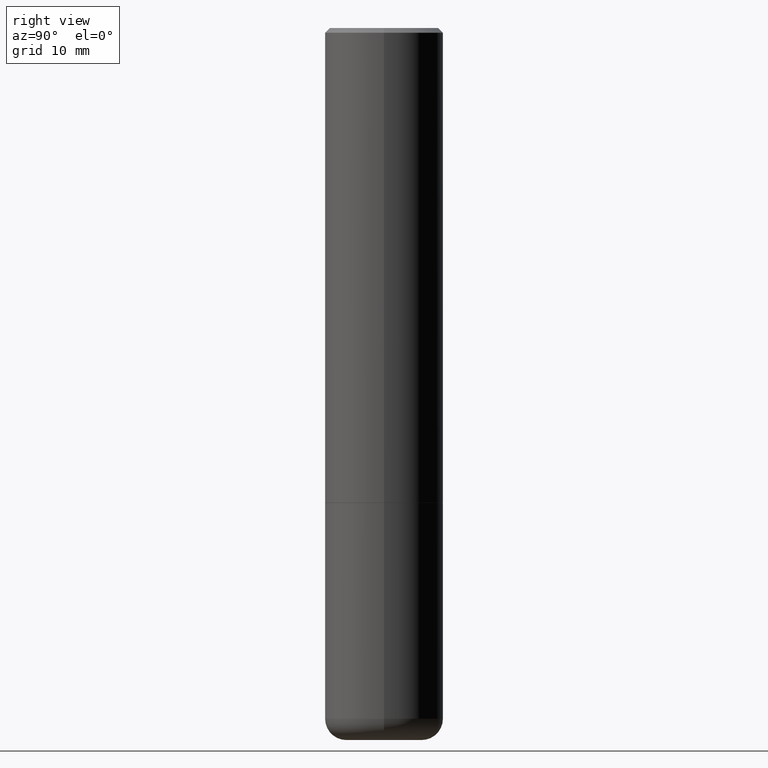
[diagram: clean part render]
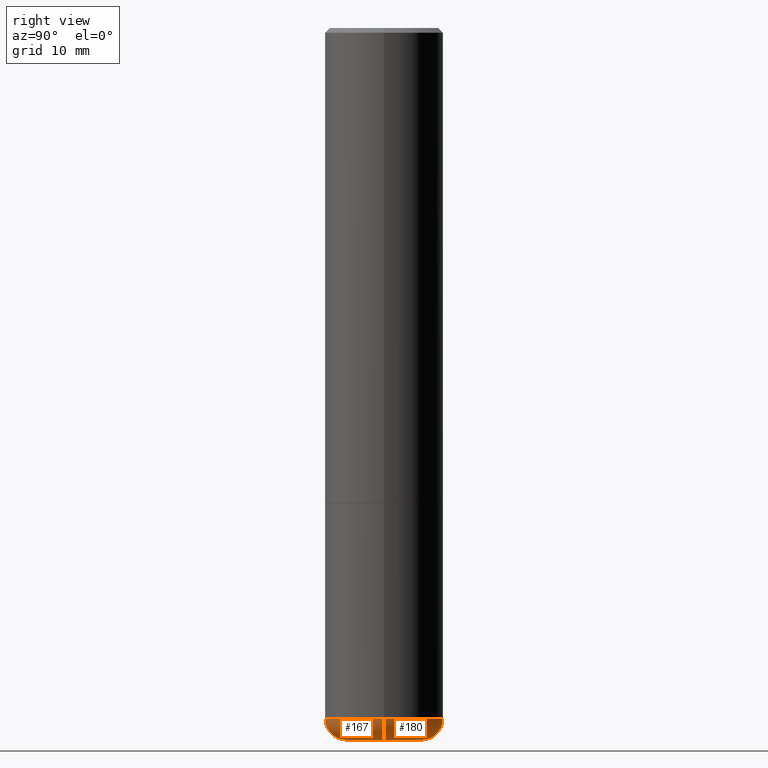
[diagram: same view with one multi-face feature highlighted, each face labeled with its STEP entity id]
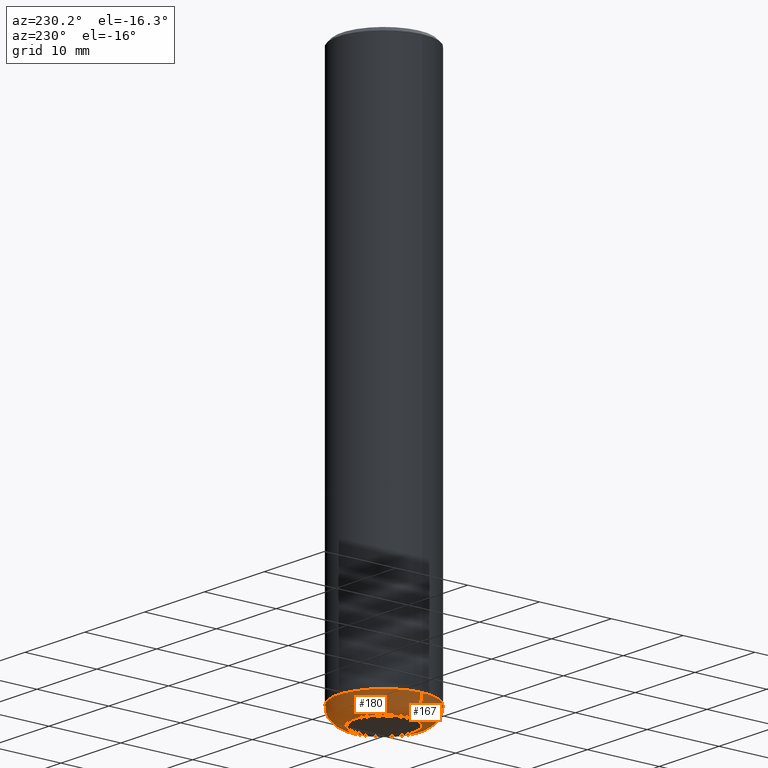
[diagram: same view with one multi-face feature highlighted, each face labeled with its STEP entity id]
A machine part, right view. The highlighted faces form ONE feature: a constant-radius fillet chain: 2 tangent blend faces with common blend radius 2.286 mm. The faces share edges in the B-rep.
A second angle (auxiliary view) of the same feature is appended — it is thin or edge-on in the first view.
Their STEP definitions:
[1] entity #167 (Torus):
#7 = AXIS2_PLACEMENT_3D ( 'NONE', #320, #169, #9 ) ;
#9 = DIRECTION ( 'NONE',  ( 1.000000000000000000, -6.982962677686271444E-15, 0.000000000000000000 ) ) ;
#22 = DIRECTION ( 'NONE',  ( 1.000000000000000000, -6.982962677686265133E-15, 4.883557194083112340E-29 ) ) ;
#28 = CIRCLE ( 'NONE', #296, 0.08999999999999964972 ) ;
#35 = DIRECTION ( 'NONE',  ( -6.982962677686266711E-15, -1.000000000000000000, 3.491481338843145583E-15 ) ) ;
#38 = CARTESIAN_POINT ( 'NONE',  ( 0.1600000000000000033, -1.127748472446335797E-14, -2.910000000000000586 ) ) ;
#44 = CARTESIAN_POINT ( 'NONE',  ( 0.2499999999999998335, -1.190595136545512292E-14, -2.910000000000000586 ) ) ;
#46 = AXIS2_PLACEMENT_3D ( 'NONE', #379, #242, #273 ) ;
#47 = AXIS2_PLACEMENT_3D ( 'NONE', #38, #35, #176 ) ;
#55 = DIRECTION ( 'NONE',  ( -2.445468806185136597E-29, 3.491481338843145583E-15, 1.000000000000000000 ) ) ;
#65 = DIRECTION ( 'NONE',  ( -1.000000000000000000, 7.105427357600996337E-15, 0.000000000000000000 ) ) ;
#72 = CIRCLE ( 'NONE', #46, 0.2500000000000000000 ) ;
#82 = ORIENTED_EDGE ( 'NONE', *, *, #238, .T. ) ;
#86 = EDGE_CURVE ( 'NONE', #267, #368, #72, .T. ) ;
#118 = CIRCLE ( 'NONE', #7, 0.1600000000000000033 ) ;
#145 = ORIENTED_EDGE ( 'NONE', *, *, #86, .F. ) ;
#149 = AXIS2_PLACEMENT_3D ( 'NONE', #276, #55, #22 ) ;
#167 = ADVANCED_FACE ( 'NONE', ( #221 ), #344, .T. ) ;
#169 = DIRECTION ( 'NONE',  ( -2.445468806185136597E-29, 3.491481338843145583E-15, 1.000000000000000000 ) ) ;
#176 = DIRECTION ( 'NONE',  ( 1.000000000000000000, -6.982962677686273810E-15, 0.000000000000000000 ) ) ;
#201 = CARTESIAN_POINT ( 'NONE',  ( 0.1600000000000000033, -1.159171804495923808E-14, -2.999999999999999556 ) ) ;
#210 = VERTEX_POINT ( 'NONE', #285 ) ;
#221 = FACE_OUTER_BOUND ( 'NONE', #358, .T. ) ;
#225 = VERTEX_POINT ( 'NONE', #201 ) ;
#228 = CIRCLE ( 'NONE', #47, 0.08999999999999964972 ) ;
#238 = EDGE_CURVE ( 'NONE', #225, #368, #228, .T. ) ;
#242 = DIRECTION ( 'NONE',  ( -2.445468806185136597E-29, 3.491481338843145583E-15, 1.000000000000000000 ) ) ;
#243 = EDGE_CURVE ( 'NONE', #210, #267, #28, .T. ) ;
#252 = DIRECTION ( 'NONE',  ( 7.105427357601001859E-15, 1.000000000000000000, -3.491481338843145583E-15 ) ) ;
#260 = ORIENTED_EDGE ( 'NONE', *, *, #243, .F. ) ;
#267 = VERTEX_POINT ( 'NONE', #386 ) ;
#273 = DIRECTION ( 'NONE',  ( 1.000000000000000000, -6.982962677686270655E-15, 0.000000000000000000 ) ) ;
#276 = CARTESIAN_POINT ( 'NONE',  ( 7.116314225998749245E-29, -1.016021069603355467E-14, -2.910000000000000586 ) ) ;
#285 = CARTESIAN_POINT ( 'NONE',  ( -0.1600000000000000033, -8.860714747973291991E-15, -2.999999999999999556 ) ) ;
#288 = EDGE_CURVE ( 'NONE', #210, #225, #118, .T. ) ;
#296 = AXIS2_PLACEMENT_3D ( 'NONE', #392, #252, #65 ) ;
#320 = CARTESIAN_POINT ( 'NONE',  ( 7.336406418555408669E-29, -1.047444401652943478E-14, -2.999999999999999556 ) ) ;
#344 = TOROIDAL_SURFACE ( 'NONE', #149, 0.1600000000000000033, 0.08999999999999964972 ) ;
#358 = EDGE_LOOP ( 'NONE', ( #260, #372, #82, #145 ) ) ;
#368 = VERTEX_POINT ( 'NONE', #44 ) ;
#372 = ORIENTED_EDGE ( 'NONE', *, *, #288, .T. ) ;
#379 = CARTESIAN_POINT ( 'NONE',  ( 7.116314225998749245E-29, -1.016021069603355467E-14, -2.910000000000000586 ) ) ;
#386 = CARTESIAN_POINT ( 'NONE',  ( -0.2499999999999998335, -8.383853856633305780E-15, -2.910000000000000586 ) ) ;
#392 = CARTESIAN_POINT ( 'NONE',  ( -0.1600000000000000033, -9.023342318817394938E-15, -2.910000000000000586 ) ) ;
[2] entity #180 (Torus):
#17 = ORIENTED_EDGE ( 'NONE', *, *, #243, .T. ) ;
#28 = CIRCLE ( 'NONE', #296, 0.08999999999999964972 ) ;
#35 = DIRECTION ( 'NONE',  ( -6.982962677686266711E-15, -1.000000000000000000, 3.491481338843145583E-15 ) ) ;
#38 = CARTESIAN_POINT ( 'NONE',  ( 0.1600000000000000033, -1.127748472446335797E-14, -2.910000000000000586 ) ) ;
#44 = CARTESIAN_POINT ( 'NONE',  ( 0.2499999999999998335, -1.190595136545512292E-14, -2.910000000000000586 ) ) ;
#47 = AXIS2_PLACEMENT_3D ( 'NONE', #38, #35, #176 ) ;
#61 = DIRECTION ( 'NONE',  ( 1.000000000000000000, -6.982962677686265133E-15, 4.883557194083112340E-29 ) ) ;
#64 = CIRCLE ( 'NONE', #417, 0.2500000000000000000 ) ;
#65 = DIRECTION ( 'NONE',  ( -1.000000000000000000, 7.105427357600996337E-15, 0.000000000000000000 ) ) ;
#80 = CIRCLE ( 'NONE', #208, 0.1600000000000000033 ) ;
#176 = DIRECTION ( 'NONE',  ( 1.000000000000000000, -6.982962677686273810E-15, 0.000000000000000000 ) ) ;
#179 = DIRECTION ( 'NONE',  ( 1.000000000000000000, -6.982962677686270655E-15, 0.000000000000000000 ) ) ;
#180 = ADVANCED_FACE ( 'NONE', ( #257 ), #202, .T. ) ;
#201 = CARTESIAN_POINT ( 'NONE',  ( 0.1600000000000000033, -1.159171804495923808E-14, -2.999999999999999556 ) ) ;
#202 = TOROIDAL_SURFACE ( 'NONE', #411, 0.1600000000000000033, 0.08999999999999964972 ) ;
#203 = DIRECTION ( 'NONE',  ( 1.000000000000000000, -6.982962677686271444E-15, 0.000000000000000000 ) ) ;
#208 = AXIS2_PLACEMENT_3D ( 'NONE', #232, #222, #203 ) ;
#210 = VERTEX_POINT ( 'NONE', #285 ) ;
#212 = CARTESIAN_POINT ( 'NONE',  ( 7.116314225998749245E-29, -1.016021069603355467E-14, -2.910000000000000586 ) ) ;
#214 = ORIENTED_EDGE ( 'NONE', *, *, #238, .F. ) ;
#222 = DIRECTION ( 'NONE',  ( -2.445468806185136597E-29, 3.491481338843145583E-15, 1.000000000000000000 ) ) ;
#225 = VERTEX_POINT ( 'NONE', #201 ) ;
#228 = CIRCLE ( 'NONE', #47, 0.08999999999999964972 ) ;
#232 = CARTESIAN_POINT ( 'NONE',  ( 7.336406418555408669E-29, -1.047444401652943478E-14, -2.999999999999999556 ) ) ;
#238 = EDGE_CURVE ( 'NONE', #225, #368, #228, .T. ) ;
#243 = EDGE_CURVE ( 'NONE', #210, #267, #28, .T. ) ;
#252 = DIRECTION ( 'NONE',  ( 7.105427357601001859E-15, 1.000000000000000000, -3.491481338843145583E-15 ) ) ;
#257 = FACE_OUTER_BOUND ( 'NONE', #387, .T. ) ;
#267 = VERTEX_POINT ( 'NONE', #386 ) ;
#270 = ORIENTED_EDGE ( 'NONE', *, *, #352, .F. ) ;
#274 = EDGE_CURVE ( 'NONE', #225, #210, #80, .T. ) ;
#285 = CARTESIAN_POINT ( 'NONE',  ( -0.1600000000000000033, -8.860714747973291991E-15, -2.999999999999999556 ) ) ;
#296 = AXIS2_PLACEMENT_3D ( 'NONE', #392, #252, #65 ) ;
#304 = ORIENTED_EDGE ( 'NONE', *, *, #274, .T. ) ;
#325 = CARTESIAN_POINT ( 'NONE',  ( 7.116314225998749245E-29, -1.016021069603355467E-14, -2.910000000000000586 ) ) ;
#352 = EDGE_CURVE ( 'NONE', #368, #267, #64, .T. ) ;
#363 = DIRECTION ( 'NONE',  ( -2.445468806185136597E-29, 3.491481338843145583E-15, 1.000000000000000000 ) ) ;
#368 = VERTEX_POINT ( 'NONE', #44 ) ;
#386 = CARTESIAN_POINT ( 'NONE',  ( -0.2499999999999998335, -8.383853856633305780E-15, -2.910000000000000586 ) ) ;
#387 = EDGE_LOOP ( 'NONE', ( #304, #17, #270, #214 ) ) ;
#392 = CARTESIAN_POINT ( 'NONE',  ( -0.1600000000000000033, -9.023342318817394938E-15, -2.910000000000000586 ) ) ;
#394 = DIRECTION ( 'NONE',  ( -2.445468806185136597E-29, 3.491481338843145583E-15, 1.000000000000000000 ) ) ;
#411 = AXIS2_PLACEMENT_3D ( 'NONE', #325, #394, #61 ) ;
#417 = AXIS2_PLACEMENT_3D ( 'NONE', #212, #363, #179 ) ;